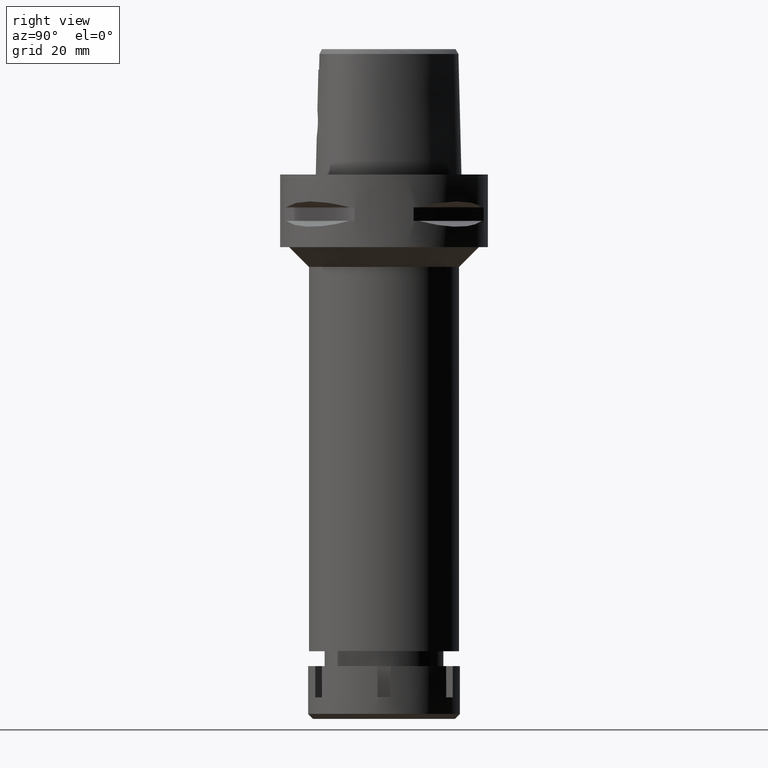
[diagram: clean part render]
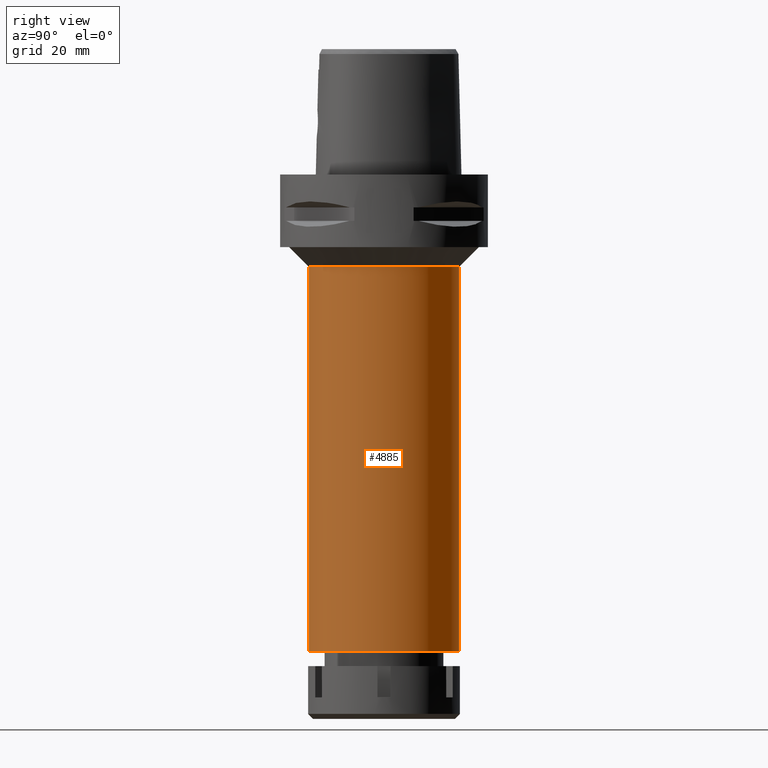
[diagram: same view with one face highlighted and labeled with its STEP entity id]
A machine part, right view. The second image highlights one B-rep face of the part: STEP entity #4885.
In plain terms, the highlighted cylindrical surface (partial cylindrical patch) has radius 22.75 mm, axis along (0, 0, -1).
Its self-contained STEP definition (entity closure, byte-faithful):
#252 = EDGE_CURVE ( 'NONE', #4894, #1343, #5131, .T. ) ;
#449 = CARTESIAN_POINT ( 'NONE',  ( 0.0000000000000000000, -22.75000000000000000, -28.00000000000000000 ) ) ;
#513 = CARTESIAN_POINT ( 'NONE',  ( 0.0000000000000000000, 1.320781572880000066E-14, -144.5000000000000000 ) ) ;
#524 = CIRCLE ( 'NONE', #5201, 22.75000000000000000 ) ;
#684 = ORIENTED_EDGE ( 'NONE', *, *, #3563, .T. ) ;
#944 = ORIENTED_EDGE ( 'NONE', *, *, #2084, .T. ) ;
#964 = CYLINDRICAL_SURFACE ( 'NONE', #1692, 22.75000000000000000 ) ;
#1048 = CIRCLE ( 'NONE', #3218, 22.75000000000000000 ) ;
#1343 = VERTEX_POINT ( 'NONE', #4981 ) ;
#1439 = DIRECTION ( 'NONE',  ( 0.0000000000000000000, 0.0000000000000000000, 1.000000000000000000 ) ) ;
#1692 = AXIS2_PLACEMENT_3D ( 'NONE', #5218, #2680, #4393 ) ;
#1718 = DIRECTION ( 'NONE',  ( 0.0000000000000000000, 0.0000000000000000000, -1.000000000000000000 ) ) ;
#1781 = FACE_OUTER_BOUND ( 'NONE', #3290, .T. ) ;
#1788 = EDGE_CURVE ( 'NONE', #4894, #5099, #1048, .T. ) ;
#1958 = VERTEX_POINT ( 'NONE', #2462 ) ;
#2084 = EDGE_CURVE ( 'NONE', #5099, #1958, #2097, .T. ) ;
#2097 = LINE ( 'NONE', #3739, #4286 ) ;
#2181 = ORIENTED_EDGE ( 'NONE', *, *, #252, .F. ) ;
#2462 = CARTESIAN_POINT ( 'NONE',  ( 0.0000000000000000000, -22.75000000000000000, -144.5000000000000000 ) ) ;
#2680 = DIRECTION ( 'NONE',  ( 0.0000000000000000000, 0.0000000000000000000, -1.000000000000000000 ) ) ;
#3183 = DIRECTION ( 'NONE',  ( 0.0000000000000000000, 0.0000000000000000000, -1.000000000000000000 ) ) ;
#3218 = AXIS2_PLACEMENT_3D ( 'NONE', #5393, #3183, #4976 ) ;
#3290 = EDGE_LOOP ( 'NONE', ( #4293, #944, #684, #2181 ) ) ;
#3515 = CARTESIAN_POINT ( 'NONE',  ( 0.0000000000000000000, 22.75000000000000000, -28.00000000000000000 ) ) ;
#3563 = EDGE_CURVE ( 'NONE', #1958, #1343, #524, .T. ) ;
#3739 = CARTESIAN_POINT ( 'NONE',  ( 0.0000000000000000000, -22.75000000000000000, -28.00000000000000000 ) ) ;
#3810 = CARTESIAN_POINT ( 'NONE',  ( 0.0000000000000000000, 22.75000000000000000, -28.00000000000000000 ) ) ;
#3828 = VECTOR ( 'NONE', #1718, 1000.000000000000000 ) ;
#4286 = VECTOR ( 'NONE', #4605, 1000.000000000000000 ) ;
#4293 = ORIENTED_EDGE ( 'NONE', *, *, #1788, .T. ) ;
#4393 = DIRECTION ( 'NONE',  ( 0.0000000000000000000, -1.000000000000000000, 0.0000000000000000000 ) ) ;
#4605 = DIRECTION ( 'NONE',  ( 0.0000000000000000000, 0.0000000000000000000, -1.000000000000000000 ) ) ;
#4773 = DIRECTION ( 'NONE',  ( 0.0000000000000000000, -1.000000000000000000, 0.0000000000000000000 ) ) ;
#4885 = ADVANCED_FACE ( 'NONE', ( #1781 ), #964, .T. ) ;
#4894 = VERTEX_POINT ( 'NONE', #3515 ) ;
#4976 = DIRECTION ( 'NONE',  ( 0.0000000000000000000, 1.000000000000000000, 0.0000000000000000000 ) ) ;
#4981 = CARTESIAN_POINT ( 'NONE',  ( 0.0000000000000000000, 22.75000000000000000, -144.5000000000000000 ) ) ;
#5099 = VERTEX_POINT ( 'NONE', #449 ) ;
#5131 = LINE ( 'NONE', #3810, #3828 ) ;
#5201 = AXIS2_PLACEMENT_3D ( 'NONE', #513, #1439, #4773 ) ;
#5218 = CARTESIAN_POINT ( 'NONE',  ( 0.0000000000000000000, 1.320781572880000066E-14, 7.849999999999999645 ) ) ;
#5393 = CARTESIAN_POINT ( 'NONE',  ( 0.0000000000000000000, 0.0000000000000000000, -28.00000000000000000 ) ) ;